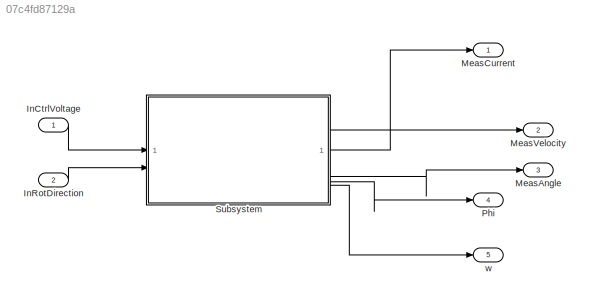
MODEL slx_07c4fd87129a
KIND model
CONFIG AbsTol = auto
CONFIG EnableMultiTasking = off
CONFIG FixedStep = auto
CONFIG MaxStep = auto
CONFIG MinStep = auto
CONFIG RelTol = 1e-3
CONFIG SampleTimeConstraint = Unconstrained
CONFIG SolverName = VariableStepAuto
CONFIG StartTime = 0.0
CONFIG StopTime = 10.0
BLOCK [Outport]  Phi
  Port = 4
BLOCK [Inport] InCtrlVoltage
BLOCK [Inport] InRotDirection
  Port = 2
BLOCK [Outport] MeasAngle
  Port = 3
BLOCK [Outport] MeasCurrent
BLOCK [Outport] MeasVelocity
  Port = 2
BLOCK [ModelReference] Subsystem
  ModelNameDialog = ControlOblectSUBMod
  ModelReferenceVersion = 1.5
BLOCK [Outport] w
  Port = 5
LINE InCtrlVoltage:1 -> Subsystem:1
LINE InRotDirection:1 -> Subsystem:2
LINE Subsystem:1 -> MeasCurrent:1
LINE Subsystem:2 -> MeasVelocity:1
LINE Subsystem:3 -> MeasAngle:1
LINE Subsystem:4 ->  Phi:1
LINE Subsystem:5 -> w:1
